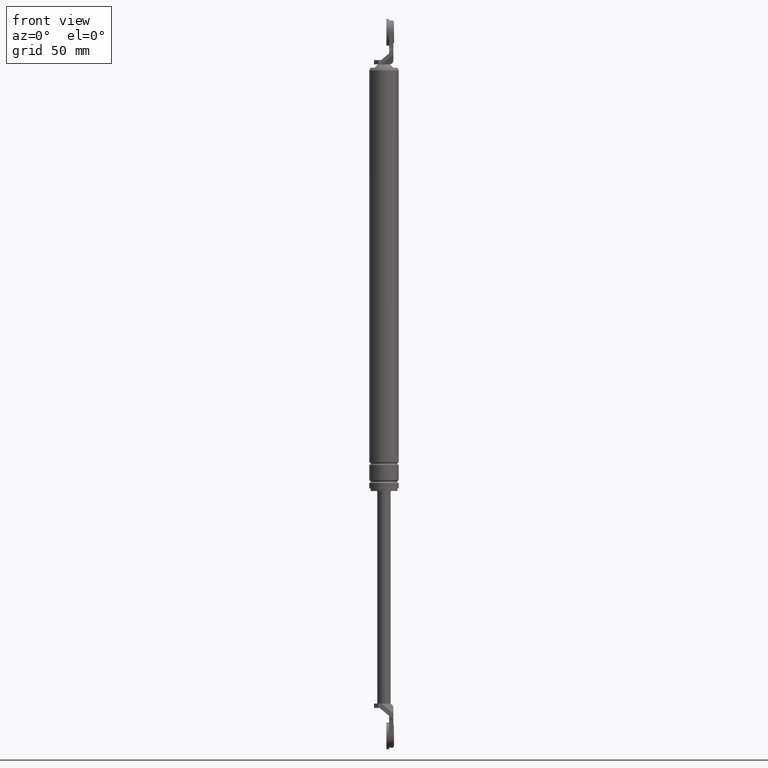
[diagram: clean part render]
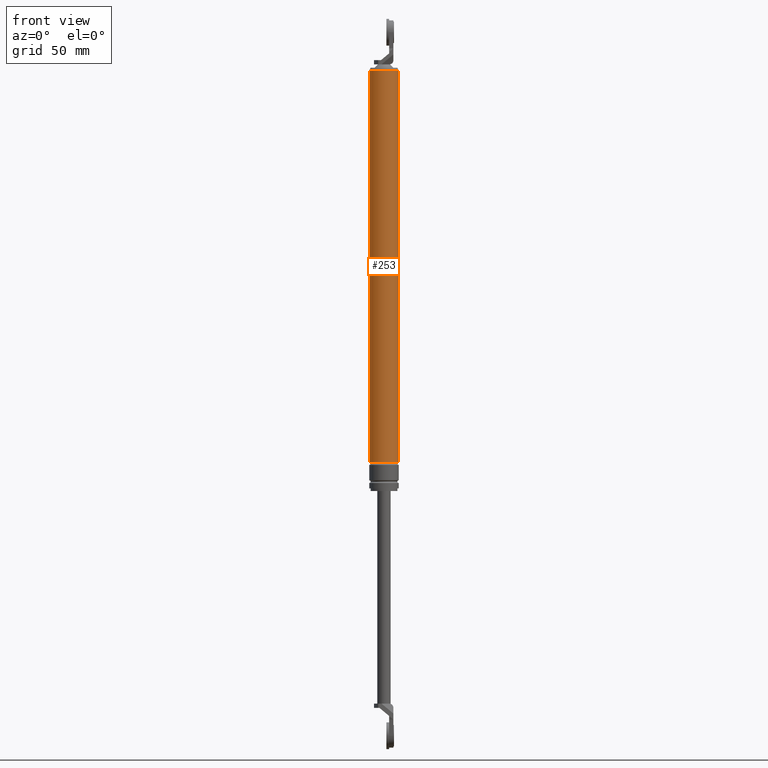
[diagram: same view with one face highlighted and labeled with its STEP entity id]
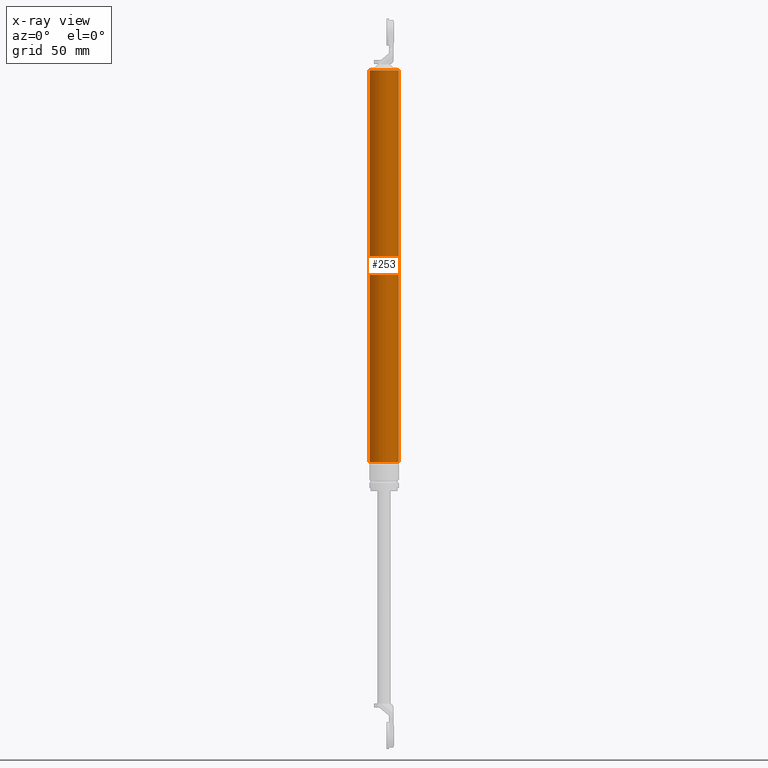
[diagram: x-ray of the same camera — body ghosted, the highlighted face saturated]
A machine part, front view. The second image highlights one B-rep face of the part: STEP entity #253.
The next image is the same camera in x-ray: the body ghosted, the highlighted face saturated — about 0% of this face is hidden behind the body in this view.
In plain terms, the highlighted cylindrical surface (edge-blend (fillet) strip) has radius 11 mm, axis along (0, 0, 1).
Its self-contained STEP definition (entity closure, byte-faithful):
#253=ADVANCED_FACE('',(#783),#782,.T.);
#782=CYLINDRICAL_SURFACE('',#1472,1.10000000000E+001);
#783=FACE_OUTER_BOUND('',#1473,.T.);
#1469=CARTESIAN_POINT('',(0.00000000000E+000,0.00000000000E+000,5.00000000000E+001));
#1470=DIRECTION('',(-0.00000000000E+000,-0.00000000000E+000,1.00000000000E+000));
#1471=DIRECTION('',(1.00000000000E+000,0.00000000000E+000,0.00000000000E+000));
#1472=AXIS2_PLACEMENT_3D('',#1469,#1470,#1471);
#1473=EDGE_LOOP('',(#1904,#1905,#1906,#1907));
#1904=ORIENTED_EDGE('',*,*,#2173,.F.);
#1905=ORIENTED_EDGE('',*,*,#2177,.T.);
#1906=ORIENTED_EDGE('',*,*,#2179,.T.);
#1907=ORIENTED_EDGE('',*,*,#2178,.F.);
#2173=EDGE_CURVE('',#2987,#2986,#3006,.T.);
#2177=EDGE_CURVE('',#2987,#3025,#3032,.T.);
#2178=EDGE_CURVE('',#2986,#3024,#3038,.T.);
#2179=EDGE_CURVE('',#3025,#3024,#3044,.T.);
#2986=VERTEX_POINT('',#3977);
#2987=VERTEX_POINT('',#3978);
#3006=CIRCLE('',#3996,1.10000000000E+001);
#3024=VERTEX_POINT('',#4001);
#3025=VERTEX_POINT('',#4002);
#3032=(BOUNDED_CURVE() B_SPLINE_CURVE(1,(#4007,#4008),.UNSPECIFIED.,.F.,.F.) B_SPLINE_CURVE_WITH_KNOTS((2,2),(3.19488818761E-002,9.68051118208E-001),.UNSPECIFIED.) CURVE() GEOMETRIC_REPRESENTATION_ITEM() RATIONAL_B_SPLINE_CURVE((1.00000000000E+000,1.00000000000E+000)) REPRESENTATION_ITEM('') );
#3038=(BOUNDED_CURVE() B_SPLINE_CURVE(1,(#4009,#4010),.UNSPECIFIED.,.F.,.F.) B_SPLINE_CURVE_WITH_KNOTS((2,2),(3.19488817891E-002,9.68051118211E-001),.UNSPECIFIED.) CURVE() GEOMETRIC_REPRESENTATION_ITEM() RATIONAL_B_SPLINE_CURVE((7.50000000000E-001,7.50000000000E-001)) REPRESENTATION_ITEM('') );
#3044=CIRCLE('',#4014,1.10000000000E+001);
#3977=CARTESIAN_POINT('',(-1.10000000000E+001,0.00000000000E+000,7.15000000000E+001));
#3978=CARTESIAN_POINT('',(1.10000000000E+001,5.92118946467E-016,7.15000000000E+001));
#3993=CARTESIAN_POINT('',(0.00000000000E+000,0.00000000000E+000,7.15000000000E+001));
#3994=DIRECTION('',(-0.00000000000E+000,0.00000000000E+000,-1.00000000000E+000));
#3995=DIRECTION('',(-1.00000000000E+000,-1.22460635382E-016,0.00000000000E+000));
#3996=AXIS2_PLACEMENT_3D('',#3993,#3994,#3995);
#4001=CARTESIAN_POINT('',(-1.10000000000E+001,0.00000000000E+000,3.64500000000E+002));
#4002=CARTESIAN_POINT('',(1.10000000000E+001,5.92118946467E-016,3.64500000000E+002));
#4007=CARTESIAN_POINT('',(1.10000000000E+001,0.00000000000E+000,7.15000000272E+001));
#4008=CARTESIAN_POINT('',(1.10000000000E+001,0.00000000000E+000,3.64499999999E+002));
#4009=CARTESIAN_POINT('',(-1.10000000000E+001,0.00000000000E+000,7.15000000000E+001));
#4010=CARTESIAN_POINT('',(-1.10000000000E+001,0.00000000000E+000,3.64500000000E+002));
#4011=CARTESIAN_POINT('',(0.00000000000E+000,0.00000000000E+000,3.64500000000E+002));
#4012=DIRECTION('',(-0.00000000000E+000,0.00000000000E+000,-1.00000000000E+000));
#4013=DIRECTION('',(-1.00000000000E+000,-1.22460635382E-016,0.00000000000E+000));
#4014=AXIS2_PLACEMENT_3D('',#4011,#4012,#4013);